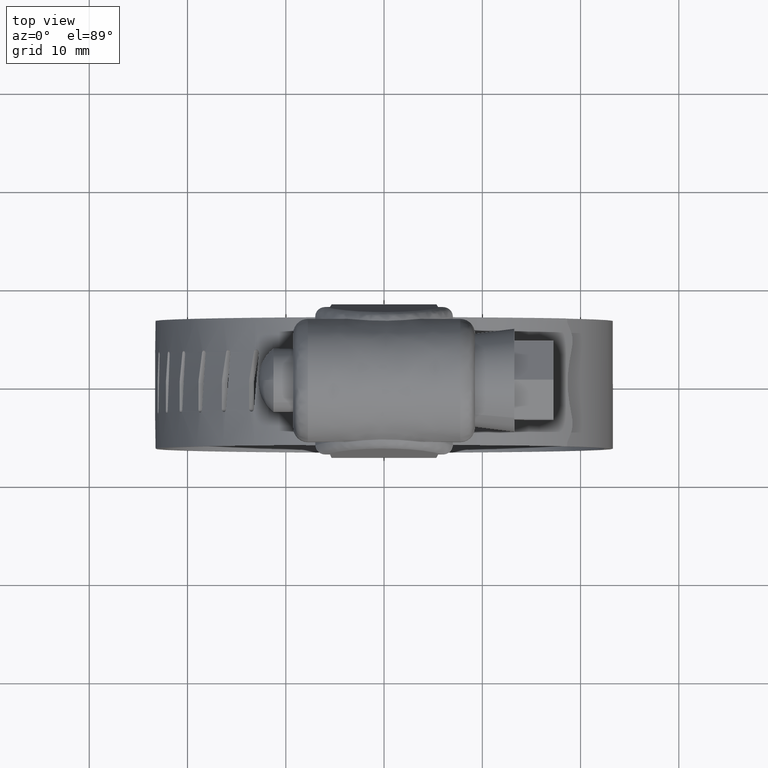
[diagram: clean part render]
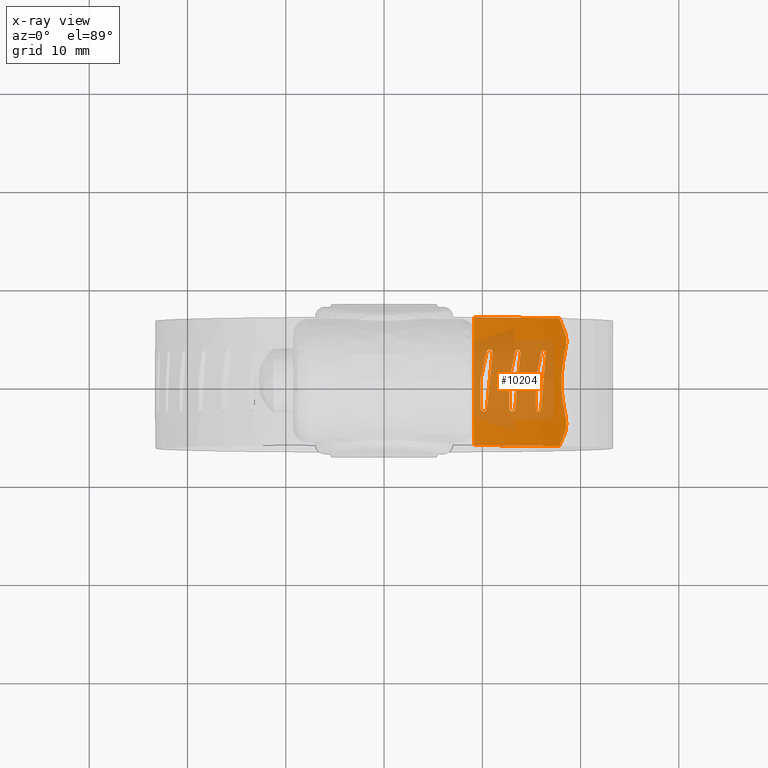
[diagram: x-ray — body ghosted, one internal face saturated and labeled with its STEP entity id]
A machine part, top view, then the same camera in x-ray: the body is ghosted and one INTERNAL B-rep face — a face not visible from any outside direction — is saturated and labeled: STEP entity #10204.
In plain terms, the highlighted face is a freeform B-spline surface patch.
Its self-contained STEP definition (entity closure, byte-faithful):
#3715=CARTESIAN_POINT('',(18.218112314241850,-2.061301204482770,3.940543639605295));
#3716=VERTEX_POINT('',#3715);
#3722=CARTESIAN_POINT('',(18.218112314241850,2.061301204482505,3.940543639605301));
#3723=VERTEX_POINT('',#3722);
#3724=CARTESIAN_POINT('',(18.218112314241850,2.061301204482505,3.940543639605301));
#3725=CARTESIAN_POINT('',(18.108868346224920,1.452914982481057,4.061630570816178));
#3726=CARTESIAN_POINT('',(18.019192865780049,0.522025877381277,4.161027626132550));
#3727=CARTESIAN_POINT('',(18.049718128937350,-0.869522947911880,4.127193168200924));
#3728=CARTESIAN_POINT('',(18.139051156388970,-1.620736166929512,4.028175690657448));
#3729=CARTESIAN_POINT('',(18.218112314241850,-2.061301204482770,3.940543639605295));
#3730=B_SPLINE_CURVE_WITH_KNOTS('',3,(#3724,#3725,#3726,#3727,#3728,#3729),.UNSPECIFIED.,.F.,.U.,(4,1,1,4),(5.702555E-009,1.889548567130754,2.801738864877705,4.170034216857564),.UNSPECIFIED.);
#3731=EDGE_CURVE('',#3723,#3716,#3730,.T.);
#3768=CARTESIAN_POINT('',(18.503274291775099,3.681800700682940,3.614255653451900));
#3769=VERTEX_POINT('',#3768);
#3775=CARTESIAN_POINT('',(18.360615617240249,5.226117512658591,3.779113377709190));
#3776=VERTEX_POINT('',#3775);
#3777=CARTESIAN_POINT('',(18.360615617240249,5.226117512658591,3.779113377709190));
#3778=CARTESIAN_POINT('',(18.433731578029050,5.040244492626331,3.694287073660336));
#3779=CARTESIAN_POINT('',(18.511176989694398,4.741597294296142,3.604493831893287));
#3780=CARTESIAN_POINT('',(18.560151500353481,4.211207789769572,3.547898545704692));
#3781=CARTESIAN_POINT('',(18.539869505669952,3.891412010469340,3.571632996909437));
#3782=CARTESIAN_POINT('',(18.503274291775099,3.681800700682940,3.614255653451900));
#3783=B_SPLINE_CURVE_WITH_KNOTS('',3,(#3777,#3778,#3779,#3780,#3781,#3782),.UNSPECIFIED.,.F.,.U.,(4,1,1,4),(0.000000022555290,0.650950548598869,0.951376047882711,1.602326573926457),.UNSPECIFIED.);
#3784=EDGE_CURVE('',#3776,#3769,#3783,.T.);
#3821=CARTESIAN_POINT('',(18.360615617240299,-5.226117512659011,3.779113377709115));
#3822=VERTEX_POINT('',#3821);
#3828=CARTESIAN_POINT('',(18.503274291775099,-3.681800700683130,3.614255653451910));
#3829=VERTEX_POINT('',#3828);
#3830=CARTESIAN_POINT('',(18.503274291775099,-3.681800700683130,3.614255653451910));
#3831=CARTESIAN_POINT('',(18.545673451712730,-3.923649442405940,3.565124791635137));
#3832=CARTESIAN_POINT('',(18.564408682833569,-4.321782567210030,3.543359287833996));
#3833=CARTESIAN_POINT('',(18.487068165395499,-4.845773434534296,3.632794613933703));
#3834=CARTESIAN_POINT('',(18.408454932383350,-5.104565337736180,3.723754038439102));
#3835=CARTESIAN_POINT('',(18.360615617240299,-5.226117512659011,3.779113377709115));
#3836=B_SPLINE_CURVE_WITH_KNOTS('',3,(#3830,#3831,#3832,#3833,#3834,#3835),.UNSPECIFIED.,.F.,.U.,(4,1,1,4),(0.000000022557429,0.751094581561070,1.176709988181460,1.602328709585966),.UNSPECIFIED.);
#3837=EDGE_CURVE('',#3829,#3822,#3836,.T.);
#8997=CARTESIAN_POINT('',(9.824028083710960,-2.805677704154365,9.778041437387500));
#8998=VERTEX_POINT('',#8997);
#9019=CARTESIAN_POINT('',(10.450718277250759,-2.837049000000085,9.521872924112291));
#9020=VERTEX_POINT('',#9019);
#9026=CARTESIAN_POINT('',(9.824028083710960,-2.805677704154365,9.778041437387500));
#9027=CARTESIAN_POINT('',(9.844069470022594,-2.870580493566660,9.770624616333267));
#9028=CARTESIAN_POINT('',(9.904386921051202,-2.963872793130530,9.747064405710505));
#9029=CARTESIAN_POINT('',(10.027351885356820,-3.039056728877421,9.697638347257097));
#9030=CARTESIAN_POINT('',(10.157848855631009,-3.064493626521436,9.644525250763092));
#9031=CARTESIAN_POINT('',(10.288475885234080,-3.030558821840450,9.590638474016973));
#9032=CARTESIAN_POINT('',(10.393580749575859,-2.943902544860442,9.546560006214520));
#9033=CARTESIAN_POINT('',(10.435657972590450,-2.874561024845513,9.528493369969292));
#9034=CARTESIAN_POINT('',(10.450718277250759,-2.837049000000085,9.521872924112291));
#9035=B_SPLINE_CURVE_WITH_KNOTS('',3,(#9026,#9027,#9028,#9029,#9030,#9031,#9032,#9033,#9034),.UNSPECIFIED.,.F.,.U.,(4,1,1,1,1,1,4),(0.000000401406102,0.204829563778223,0.327732531924594,0.450602311910398,0.628144296745248,0.751061077967670,0.873942070555137),.UNSPECIFIED.);
#9036=EDGE_CURVE('',#8998,#9020,#9035,.T.);
#9054=CARTESIAN_POINT('',(11.049966074443860,3.032451000130135,9.255416129463791));
#9055=VERTEX_POINT('',#9054);
#9061=CARTESIAN_POINT('',(10.450718277250759,-2.837049000000085,9.521872924112291));
#9062=CARTESIAN_POINT('',(11.049966074443860,3.032451000130135,9.255416129463791));
#9063=QUASI_UNIFORM_CURVE('',1,(#9061,#9062),.UNSPECIFIED.,.F.,.U.);
#9064=EDGE_CURVE('',#9020,#9055,#9063,.T.);
#9102=CARTESIAN_POINT('',(10.450028845894300,3.032451000000000,9.522167212912269));
#9103=VERTEX_POINT('',#9102);
#9109=CARTESIAN_POINT('',(11.049966074443860,3.032451000130135,9.255416129463791));
#9110=CARTESIAN_POINT('',(11.034371495050010,3.077822933807931,9.262888354602604));
#9111=CARTESIAN_POINT('',(10.992212678901961,3.149778625328898,9.282487322085579));
#9112=CARTESIAN_POINT('',(10.910732147013370,3.216456369123522,9.319507341248441));
#9113=CARTESIAN_POINT('',(10.827856038780959,3.252405531876824,9.356783253767832));
#9114=CARTESIAN_POINT('',(10.746849126486740,3.262478219543300,9.392921013424695));
#9115=CARTESIAN_POINT('',(10.650459096267371,3.246490901341177,9.435589367334144));
#9116=CARTESIAN_POINT('',(10.535684254500220,3.185693518884514,9.485900476089649));
#9117=CARTESIAN_POINT('',(10.471737380577430,3.094411273131636,9.513250129209437));
#9118=CARTESIAN_POINT('',(10.450028845894300,3.032451000000000,9.522167212912269));
#9119=B_SPLINE_CURVE_WITH_KNOTS('',3,(#9109,#9110,#9111,#9112,#9113,#9114,#9115,#9116,#9117,#9118),.UNSPECIFIED.,.F.,.U.,(4,1,1,1,1,1,1,4),(0.000000458780414,0.145650808473442,0.251602653570087,0.331055610466061,0.436961770886505,0.516436723619243,0.648865554469667,0.847495049140078),.UNSPECIFIED.);
#9120=EDGE_CURVE('',#9055,#9103,#9119,.T.);
#9138=CARTESIAN_POINT('',(9.863254495226400,0.444964697428748,9.762665290834690));
#9139=VERTEX_POINT('',#9138);
#9145=CARTESIAN_POINT('',(10.450028845894300,3.032451000000000,9.522167212912269));
#9146=CARTESIAN_POINT('',(9.863254495226400,0.444964697428748,9.762665290834690));
#9147=QUASI_UNIFORM_CURVE('',1,(#9145,#9146),.UNSPECIFIED.,.F.,.U.);
#9148=EDGE_CURVE('',#9103,#9139,#9147,.T.);
#9177=CARTESIAN_POINT('',(9.824027555003690,0.097700716415243,9.778041644047210));
#9178=VERTEX_POINT('',#9177);
#9184=CARTESIAN_POINT('',(9.863254495226400,0.444964697428748,9.762665290834690));
#9185=CARTESIAN_POINT('',(9.837185056236212,0.331478039688616,9.772892778854049));
#9186=CARTESIAN_POINT('',(9.823985672384872,0.214590663285680,9.778066730198095));
#9187=CARTESIAN_POINT('',(9.824027555003690,0.097700716415243,9.778041644047210));
#9188=B_SPLINE_CURVE_WITH_KNOTS('',3,(#9184,#9185,#9186,#9187),.UNSPECIFIED.,.F.,.U.,(4,4),(1.772747E-009,0.350669338136714),.UNSPECIFIED.);
#9189=EDGE_CURVE('',#9139,#9178,#9188,.T.);
#9206=CARTESIAN_POINT('',(9.824027555003690,0.097700716415243,9.778041644047210));
#9207=CARTESIAN_POINT('',(9.824028083710960,-2.805677704154365,9.778041437387500));
#9208=QUASI_UNIFORM_CURVE('',1,(#9206,#9207),.UNSPECIFIED.,.F.,.U.);
#9209=EDGE_CURVE('',#9178,#8998,#9208,.T.);
#9234=CARTESIAN_POINT('',(12.758334127912139,-2.805677704154365,8.372193554202401));
#9235=VERTEX_POINT('',#9234);
#9256=CARTESIAN_POINT('',(13.340276553639180,-2.837049000000100,8.026208122411658));
#9257=VERTEX_POINT('',#9256);
#9263=CARTESIAN_POINT('',(12.758334127912139,-2.805677704154365,8.372193554202401));
#9264=CARTESIAN_POINT('',(12.777059694978311,-2.870586658877428,8.361895621995595));
#9265=CARTESIAN_POINT('',(12.833231892347500,-2.963856424475678,8.329678595728492));
#9266=CARTESIAN_POINT('',(12.954470711469870,-3.043666094095663,8.258555407399822));
#9267=CARTESIAN_POINT('',(13.057396848337500,-3.060553627838262,8.197510350822856));
#9268=CARTESIAN_POINT('',(13.161864395747591,-3.038495224840802,8.135038812981897));
#9269=CARTESIAN_POINT('',(13.263896125252771,-2.976454547614300,8.073494655799506));
#9270=CARTESIAN_POINT('',(13.320236660088691,-2.891289653194911,8.038845522598985));
#9271=CARTESIAN_POINT('',(13.340276553639180,-2.837049000000100,8.026208122411658));
#9272=B_SPLINE_CURVE_WITH_KNOTS('',3,(#9263,#9264,#9265,#9266,#9267,#9268,#9269,#9270,#9271),.UNSPECIFIED.,.F.,.U.,(4,1,1,1,1,1,4),(0.000000401404955,0.204829563777192,0.327732531923673,0.477915068521989,0.559852275138579,0.696429906806142,0.873942070555063),.UNSPECIFIED.);
#9273=EDGE_CURVE('',#9235,#9257,#9272,.T.);
#9291=CARTESIAN_POINT('',(13.893557309239579,3.032451000130135,7.674103661580170));
#9292=VERTEX_POINT('',#9291);
#9298=CARTESIAN_POINT('',(13.340276553639180,-2.837049000000100,8.026208122411658));
#9299=CARTESIAN_POINT('',(13.893557309239579,3.032451000130135,7.674103661580170));
#9300=QUASI_UNIFORM_CURVE('',1,(#9298,#9299),.UNSPECIFIED.,.F.,.U.);
#9301=EDGE_CURVE('',#9257,#9292,#9300,.T.);
#9339=CARTESIAN_POINT('',(13.339638193745159,3.032451000000000,8.026601083146080));
#9340=VERTEX_POINT('',#9339);
#9346=CARTESIAN_POINT('',(13.893557309239579,3.032451000130135,7.674103661580170));
#9347=CARTESIAN_POINT('',(13.883121156405810,3.065428481165909,7.681168732893572));
#9348=CARTESIAN_POINT('',(13.851914931852020,3.131438611047747,7.701875778881290));
#9349=CARTESIAN_POINT('',(13.790639697787389,3.197471445820759,7.741718127582782));
#9350=CARTESIAN_POINT('',(13.714222533988830,3.243733383810064,7.790942253129115));
#9351=CARTESIAN_POINT('',(13.633021493460530,3.264014085073600,7.842876789199098));
#9352=CARTESIAN_POINT('',(13.546885358899910,3.252403422387259,7.897542010443935));
#9353=CARTESIAN_POINT('',(13.473512438107351,3.218084194825499,7.943793262516720));
#9354=CARTESIAN_POINT('',(13.396775526752780,3.153283455530162,7.991793515962017));
#9355=CARTESIAN_POINT('',(13.355823228898950,3.081963356092607,8.016937735277640));
#9356=CARTESIAN_POINT('',(13.339638193745159,3.032451000000000,8.026601083146080));
#9357=B_SPLINE_CURVE_WITH_KNOTS('',3,(#9346,#9347,#9348,#9349,#9350,#9351,#9352,#9353,#9354,#9355,#9356),.UNSPECIFIED.,.F.,.U.,(4,1,1,1,1,1,1,1,4),(0.000000458781228,0.105917196646212,0.225118955759756,0.291329448857622,0.410532961990740,0.516436723619610,0.595894720569396,0.688599037731136,0.847495049140223),.UNSPECIFIED.);
#9358=EDGE_CURVE('',#9292,#9340,#9357,.T.);
#9376=CARTESIAN_POINT('',(12.794856931996341,0.444964697428748,8.351188268557518));
#9377=VERTEX_POINT('',#9376);
#9383=CARTESIAN_POINT('',(13.339638193745159,3.032451000000000,8.026601083146080));
#9384=CARTESIAN_POINT('',(12.794856931996341,0.444964697428748,8.351188268557518));
#9385=QUASI_UNIFORM_CURVE('',1,(#9383,#9384),.UNSPECIFIED.,.F.,.U.);
#9386=EDGE_CURVE('',#9340,#9377,#9385,.T.);
#9415=CARTESIAN_POINT('',(12.758333635558699,0.097700716415243,8.372193836740291));
#9416=VERTEX_POINT('',#9415);
#9422=CARTESIAN_POINT('',(12.794856931996341,0.444964697428748,8.351188268557518));
#9423=CARTESIAN_POINT('',(12.770584751640030,0.331478332603035,8.365157191726365));
#9424=CARTESIAN_POINT('',(12.758296613821690,0.214590601173372,8.372224438970521));
#9425=CARTESIAN_POINT('',(12.758333635558699,0.097700716415243,8.372193836740291));
#9426=B_SPLINE_CURVE_WITH_KNOTS('',3,(#9422,#9423,#9424,#9425),.UNSPECIFIED.,.F.,.U.,(4,4),(1.772740E-009,0.350669338136724),.UNSPECIFIED.);
#9427=EDGE_CURVE('',#9377,#9416,#9426,.T.);
#9444=CARTESIAN_POINT('',(12.758333635558699,0.097700716415243,8.372193836740291));
#9445=CARTESIAN_POINT('',(12.758334127912139,-2.805677704154365,8.372193554202401));
#9446=QUASI_UNIFORM_CURVE('',1,(#9444,#9445),.UNSPECIFIED.,.F.,.U.);
#9447=EDGE_CURVE('',#9416,#9235,#9446,.T.);
#9472=CARTESIAN_POINT('',(15.452611805834501,-2.805677704154365,6.548069647791330));
#9473=VERTEX_POINT('',#9472);
#9494=CARTESIAN_POINT('',(15.977022193509599,-2.837049000000085,6.119868000000130));
#9495=VERTEX_POINT('',#9494);
#9501=CARTESIAN_POINT('',(15.452611805834501,-2.805677704154365,6.548069647791330));
#9502=CARTESIAN_POINT('',(15.466275393367130,-2.857536788037773,6.537653106487416));
#9503=CARTESIAN_POINT('',(15.508323975543631,-2.945181675915363,6.504553515976697));
#9504=CARTESIAN_POINT('',(15.594122376763689,-3.022176827810781,6.435538057470239));
#9505=CARTESIAN_POINT('',(15.676090796930550,-3.053726216437944,6.368994102076462));
#9506=CARTESIAN_POINT('',(15.757832815378380,-3.056639367601323,6.302219866239722));
#9507=CARTESIAN_POINT('',(15.847104685837269,-3.024271750798835,6.228778961863528));
#9508=CARTESIAN_POINT('',(15.927668065851149,-2.947780986229558,6.161816471096858));
#9509=CARTESIAN_POINT('',(15.964553066200230,-2.874558010197331,6.130604384803990));
#9510=CARTESIAN_POINT('',(15.977022193509599,-2.837049000000085,6.119868000000130));
#9511=B_SPLINE_CURVE_WITH_KNOTS('',3,(#9501,#9502,#9503,#9504,#9505,#9506,#9507,#9508,#9509,#9510),.UNSPECIFIED.,.F.,.U.,(4,1,1,1,1,1,1,4),(0.000000401403986,0.163858070834421,0.300433013438869,0.396029548051582,0.491591228324090,0.614483446256818,0.751061077967415,0.873942070555210),.UNSPECIFIED.);
#9512=EDGE_CURVE('',#9473,#9495,#9511,.T.);
#9530=CARTESIAN_POINT('',(16.472181284679550,3.032451000130135,5.689851000002630));
#9531=VERTEX_POINT('',#9530);
#9537=CARTESIAN_POINT('',(15.977022193509599,-2.837049000000085,6.119868000000130));
#9538=CARTESIAN_POINT('',(16.472181284679550,3.032451000130135,5.689851000002630));
#9539=QUASI_UNIFORM_CURVE('',1,(#9537,#9538),.UNSPECIFIED.,.F.,.U.);
#9540=EDGE_CURVE('',#9495,#9531,#9539,.T.);
#9579=CARTESIAN_POINT('',(15.976448928742499,3.032451000000000,6.120351000000130));
#9580=VERTEX_POINT('',#9579);
#9586=CARTESIAN_POINT('',(16.472181284679550,3.032451000130135,5.689851000002630));
#9587=CARTESIAN_POINT('',(16.459453944931809,3.077827924377476,5.701555199477419));
#9588=CARTESIAN_POINT('',(16.428501869744121,3.142188607319412,5.729358591724133));
#9589=CARTESIAN_POINT('',(16.358512115642760,3.217456313235240,5.791219405913677));
#9590=CARTESIAN_POINT('',(16.283104429750399,3.257120138940512,5.857273938010617));
#9591=CARTESIAN_POINT('',(16.198922110321949,3.261291474866473,5.930438788179727));
#9592=CARTESIAN_POINT('',(16.120469420463319,3.235396674989711,5.998196201829300));
#9593=CARTESIAN_POINT('',(16.036198232086740,3.167964958453241,6.070409990635805));
#9594=CARTESIAN_POINT('',(15.992226037088770,3.086105531035827,6.107420458810903));
#9595=CARTESIAN_POINT('',(15.976448928742499,3.032451000000000,6.120351000000130));
#9596=B_SPLINE_CURVE_WITH_KNOTS('',3,(#9586,#9587,#9588,#9589,#9590,#9591,#9592,#9593,#9594,#9595),.UNSPECIFIED.,.F.,.U.,(4,1,1,1,1,1,1,4),(0.000000458780564,0.145650808473587,0.225118955759321,0.357563925469193,0.463457542967841,0.556167162964529,0.675348064602314,0.847495049140208),.UNSPECIFIED.);
#9597=EDGE_CURVE('',#9531,#9580,#9596,.T.);
#9615=CARTESIAN_POINT('',(15.485628659546400,0.444964697428749,6.521896672909590));
#9616=VERTEX_POINT('',#9615);
#9622=CARTESIAN_POINT('',(15.976448928742499,3.032451000000000,6.120351000000130));
#9623=CARTESIAN_POINT('',(15.485628659546400,0.444964697428749,6.521896672909590));
#9624=QUASI_UNIFORM_CURVE('',1,(#9622,#9623),.UNSPECIFIED.,.F.,.U.);
#9625=EDGE_CURVE('',#9580,#9616,#9624,.T.);
#9654=CARTESIAN_POINT('',(15.452611360650700,0.097700716415243,6.548070000000090));
#9655=VERTEX_POINT('',#9654);
#9661=CARTESIAN_POINT('',(15.485628659546400,0.444964697428749,6.521896672909590));
#9662=CARTESIAN_POINT('',(15.463692696316480,0.331477592371660,6.539295951213948));
#9663=CARTESIAN_POINT('',(15.452574399505639,0.214591372682084,6.548109602835126));
#9664=CARTESIAN_POINT('',(15.452611360650700,0.097700716415243,6.548070000000090));
#9665=B_SPLINE_CURVE_WITH_KNOTS('',3,(#9661,#9662,#9663,#9664),.UNSPECIFIED.,.F.,.U.,(4,4),(1.772747E-009,0.350669338136708),.UNSPECIFIED.);
#9666=EDGE_CURVE('',#9616,#9655,#9665,.T.);
#9683=CARTESIAN_POINT('',(15.452611360650700,0.097700716415243,6.548070000000090));
#9684=CARTESIAN_POINT('',(15.452611805834501,-2.805677704154365,6.548069647791330));
#9685=QUASI_UNIFORM_CURVE('',1,(#9683,#9684),.UNSPECIFIED.,.F.,.U.);
#9686=EDGE_CURVE('',#9655,#9473,#9685,.T.);
#9696=CARTESIAN_POINT('',(17.845437538605001,-6.500000000000000,4.348126313892585));
#9697=VERTEX_POINT('',#9696);
#9698=CARTESIAN_POINT('',(17.845437538605001,-6.500000000000000,4.348126313892585));
#9699=CARTESIAN_POINT('',(18.360615617240299,-5.226117512659011,3.779113377709115));
#9700=QUASI_UNIFORM_CURVE('',1,(#9698,#9699),.UNSPECIFIED.,.F.,.U.);
#9701=EDGE_CURVE('',#9697,#3822,#9700,.T.);
#9732=CARTESIAN_POINT('',(17.845437538605001,6.499999999999840,4.348126313892585));
#9733=VERTEX_POINT('',#9732);
#9734=CARTESIAN_POINT('',(18.360615617240249,5.226117512658591,3.779113377709190));
#9735=CARTESIAN_POINT('',(17.845437538605001,6.499999999999840,4.348126313892585));
#9736=QUASI_UNIFORM_CURVE('',1,(#9734,#9735),.UNSPECIFIED.,.F.,.U.);
#9737=EDGE_CURVE('',#3776,#9733,#9736,.T.);
#9752=CARTESIAN_POINT('',(18.503274291775099,-3.681800700683130,3.614255653451910));
#9753=CARTESIAN_POINT('',(18.218112314241850,-2.061301204482770,3.940543639605295));
#9754=QUASI_UNIFORM_CURVE('',1,(#9752,#9753),.UNSPECIFIED.,.F.,.U.);
#9755=EDGE_CURVE('',#3829,#3716,#9754,.T.);
#9778=CARTESIAN_POINT('',(18.218112314241850,2.061301204482505,3.940543639605301));
#9779=CARTESIAN_POINT('',(18.503274291775099,3.681800700682940,3.614255653451900));
#9780=QUASI_UNIFORM_CURVE('',1,(#9778,#9779),.UNSPECIFIED.,.F.,.U.);
#9781=EDGE_CURVE('',#3723,#3769,#9780,.T.);
#9860=CARTESIAN_POINT('',(9.141732246792632,-6.500000000000000,10.031776929180641));
#9861=VERTEX_POINT('',#9860);
#9874=CARTESIAN_POINT('',(9.141732246792632,6.499999999999840,10.031776929180641));
#9875=VERTEX_POINT('',#9874);
#9881=CARTESIAN_POINT('',(9.141732246792632,6.499999999999840,10.031776929180641));
#9882=CARTESIAN_POINT('',(9.141732246792632,-6.500000000000000,10.031776929180641));
#9883=QUASI_UNIFORM_CURVE('',1,(#9881,#9882),.UNSPECIFIED.,.F.,.U.);
#9884=EDGE_CURVE('',#9875,#9861,#9883,.T.);
#10025=CARTESIAN_POINT('',(17.845437538605001,-6.500000000000000,4.348126313892585));
#10026=CARTESIAN_POINT('',(17.079009531654449,-6.499999999999991,5.165558612164896));
#10027=CARTESIAN_POINT('',(15.582365721996119,-6.499999999999984,6.534607393972996));
#10028=CARTESIAN_POINT('',(12.695154820028410,-6.500000000000006,8.521671929514133));
#10029=CARTESIAN_POINT('',(10.533434954455030,-6.500000000000018,9.540563129211462));
#10030=CARTESIAN_POINT('',(9.141732246792632,-6.500000000000000,10.031776929180641));
#10031=B_SPLINE_CURVE_WITH_KNOTS('',3,(#10025,#10026,#10027,#10028,#10029,#10030),.UNSPECIFIED.,.F.,.U.,(4,1,1,4),(2.360773E-009,3.361609431405975,6.067287506042081,10.494775881866889),.UNSPECIFIED.);
#10032=EDGE_CURVE('',#9697,#9861,#10031,.T.);
#10082=CARTESIAN_POINT('',(17.845437538605001,6.499999999999840,4.348126313892585));
#10083=CARTESIAN_POINT('',(16.836065389480659,6.499999999999855,5.424834312885261));
#10084=CARTESIAN_POINT('',(15.199666423456900,6.499999999999858,6.850064430152777));
#10085=CARTESIAN_POINT('',(12.249635250947160,6.499999999999787,8.737376681125747));
#10086=CARTESIAN_POINT('',(10.404554173638219,6.499999999999858,9.586009103849488));
#10087=CARTESIAN_POINT('',(9.141732246792632,6.499999999999840,10.031776929180641));
#10088=B_SPLINE_CURVE_WITH_KNOTS('',3,(#10082,#10083,#10084,#10085,#10086,#10087),.UNSPECIFIED.,.F.,.U.,(4,1,1,4),(2.365466E-009,4.427488378189547,6.477244075679804,10.494775881866889),.UNSPECIFIED.);
#10089=EDGE_CURVE('',#9733,#9875,#10088,.T.);
#10154=CARTESIAN_POINT('',(8.604451510614259,6.824999999999837,10.213731443158991));
#10155=CARTESIAN_POINT('',(8.604451510614259,-6.833124999999996,10.213731443158991));
#10156=CARTESIAN_POINT('',(14.812002647270367,6.824999999999839,8.200512529876022));
#10157=CARTESIAN_POINT('',(14.812002647270367,-6.833124999999998,8.200512529876022));
#10158=CARTESIAN_POINT('',(18.911720669721742,6.824999999999838,3.123204813833181));
#10159=CARTESIAN_POINT('',(18.911720669721742,-6.833124999999997,3.123204813833181));
#10167=(BOUNDED_SURFACE()B_SPLINE_SURFACE(1,2,((#10154,#10156,#10158),(#10155,#10157,#10159)),.UNSPECIFIED.,.F.,.F.,.U.)B_SPLINE_SURFACE_WITH_KNOTS((2,2),(3,3),(0.0,13.658124999999840),(0.0,12.775389445794779),.UNSPECIFIED.)GEOMETRIC_REPRESENTATION_ITEM()RATIONAL_B_SPLINE_SURFACE(((0.999847183184550,0.955021872460657,0.992819805915473),(0.999847183184550,0.955021872460657,0.992819805915473)))REPRESENTATION_ITEM('')SURFACE());
#10168=ORIENTED_EDGE('',*,*,#9755,.F.);
#10169=ORIENTED_EDGE('',*,*,#3837,.T.);
#10170=ORIENTED_EDGE('',*,*,#9701,.F.);
#10171=ORIENTED_EDGE('',*,*,#10032,.T.);
#10172=ORIENTED_EDGE('',*,*,#9884,.F.);
#10173=ORIENTED_EDGE('',*,*,#10089,.F.);
#10174=ORIENTED_EDGE('',*,*,#9737,.F.);
#10175=ORIENTED_EDGE('',*,*,#3784,.T.);
#10176=ORIENTED_EDGE('',*,*,#9781,.F.);
#10177=ORIENTED_EDGE('',*,*,#3731,.T.);
#10178=EDGE_LOOP('',(#10168,#10169,#10170,#10171,#10172,#10173,#10174,#10175,#10176,#10177));
#10179=FACE_OUTER_BOUND('',#10178,.T.);
#10180=ORIENTED_EDGE('',*,*,#9427,.T.);
#10181=ORIENTED_EDGE('',*,*,#9447,.T.);
#10182=ORIENTED_EDGE('',*,*,#9273,.T.);
#10183=ORIENTED_EDGE('',*,*,#9301,.T.);
#10184=ORIENTED_EDGE('',*,*,#9358,.T.);
#10185=ORIENTED_EDGE('',*,*,#9386,.T.);
#10186=EDGE_LOOP('',(#10180,#10181,#10182,#10183,#10184,#10185));
#10187=FACE_BOUND('',#10186,.T.);
#10188=ORIENTED_EDGE('',*,*,#9666,.T.);
#10189=ORIENTED_EDGE('',*,*,#9686,.T.);
#10190=ORIENTED_EDGE('',*,*,#9512,.T.);
#10191=ORIENTED_EDGE('',*,*,#9540,.T.);
#10192=ORIENTED_EDGE('',*,*,#9597,.T.);
#10193=ORIENTED_EDGE('',*,*,#9625,.T.);
#10194=EDGE_LOOP('',(#10188,#10189,#10190,#10191,#10192,#10193));
#10195=FACE_BOUND('',#10194,.T.);
#10196=ORIENTED_EDGE('',*,*,#9189,.T.);
#10197=ORIENTED_EDGE('',*,*,#9209,.T.);
#10198=ORIENTED_EDGE('',*,*,#9036,.T.);
#10199=ORIENTED_EDGE('',*,*,#9064,.T.);
#10200=ORIENTED_EDGE('',*,*,#9120,.T.);
#10201=ORIENTED_EDGE('',*,*,#9148,.T.);
#10202=EDGE_LOOP('',(#10196,#10197,#10198,#10199,#10200,#10201));
#10203=FACE_BOUND('',#10202,.T.);
#10204=ADVANCED_FACE('',(#10179,#10187,#10195,#10203),#10167,.F.);